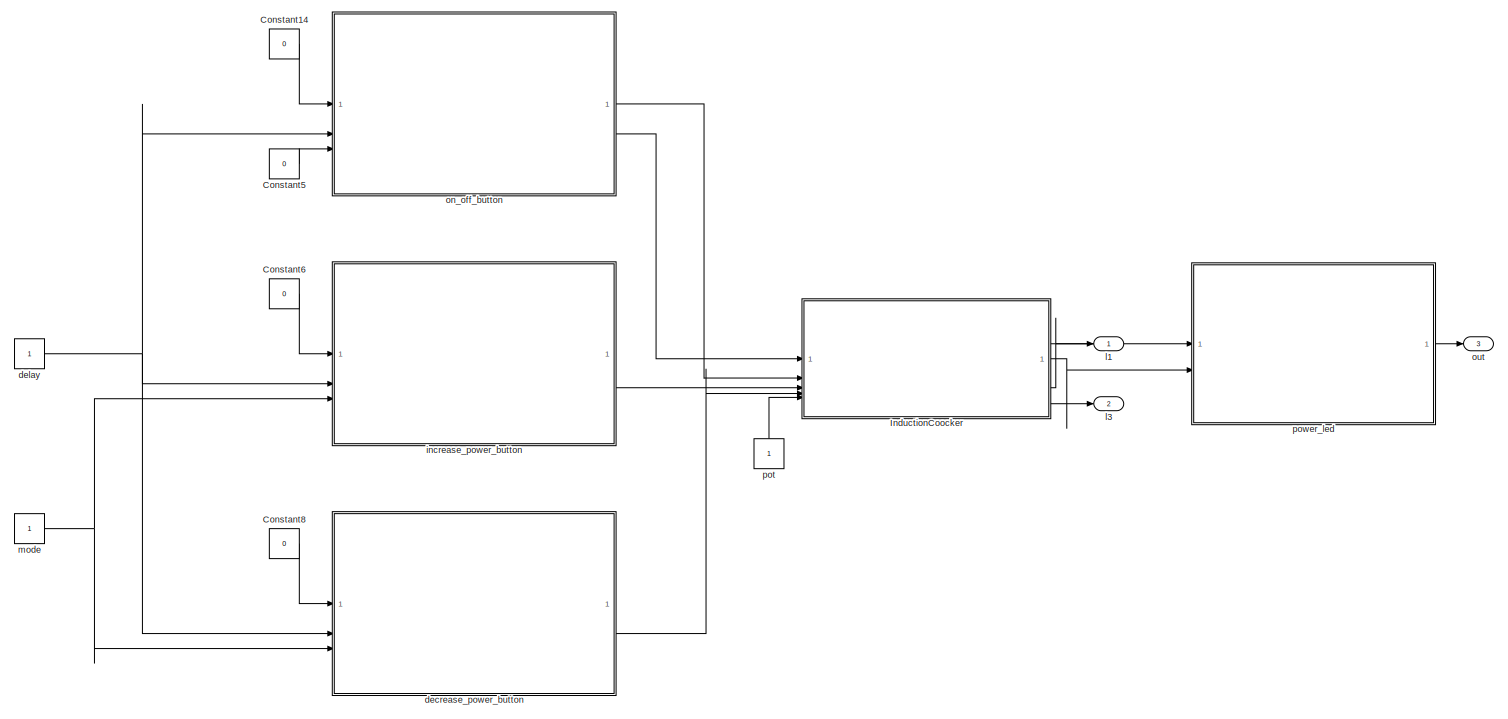
[diagram: root canvas - part 1/2, most of the canvas]
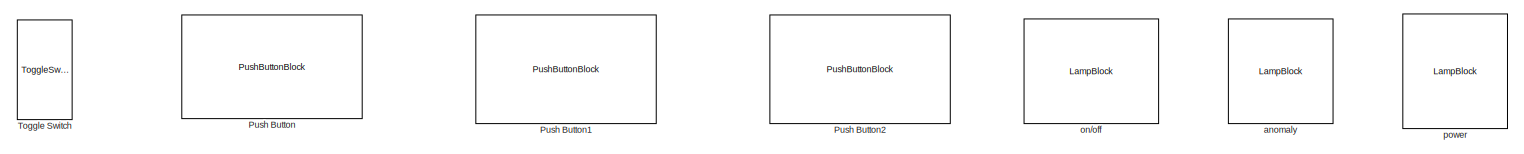
[diagram: root canvas - part 2/2, full width, bottom band]
MODEL slx_a8d4975da681
KIND model
CONFIG AbsTol = auto
CONFIG EnableMultiTasking = on
CONFIG FixedStep = 0.1
CONFIG MaxStep = auto
CONFIG MinStep = auto
CONFIG RelTol = 1e-3
CONFIG SampleTimeConstraint = Unconstrained
CONFIG SolverName = FixedStepDiscrete
CONFIG StartTime = 0.0
CONFIG StopTime = 2000
BLOCK [Constant] Constant14
  OutDataTypeStr = boolean
  Value = 0
BLOCK [Constant] Constant5
  OutDataTypeStr = boolean
  Value = 0
BLOCK [Constant] Constant6
  OutDataTypeStr = boolean
  Value = 0
BLOCK [Constant] Constant8
  OutDataTypeStr = boolean
  Value = 0
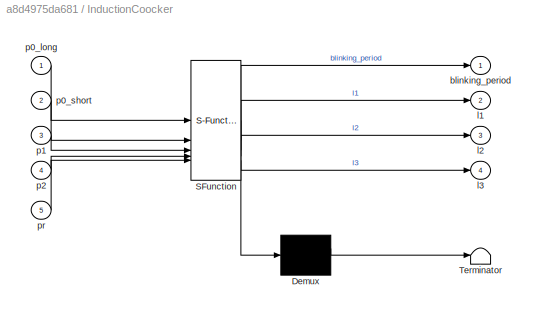
BLOCK [SubSystem] InductionCoocker
  ErrorFcn = Stateflow.Translate.translate
  PermitHierarchicalResolution = ExplicitOnly
  SFBlockType = Chart
  TreatAsAtomicUnit = on
BLOCK [Demux] InductionCoocker/ Demux 
  Outputs = 1
BLOCK [S-Function] InductionCoocker/ SFunction 
  EnableBusSupport = on
  FunctionName = sf_sfun
  PortCounts = [5 5]
  SFcnIsStateOwnerBlock = off
  SFunctionDeploymentMode = off
  Tag = Stateflow S-Function 2
BLOCK [Terminator] InductionCoocker/ Terminator 
BLOCK [Outport] InductionCoocker/blinking_period
BLOCK [Outport] InductionCoocker/l1
  Port = 2
BLOCK [Outport] InductionCoocker/l2
  Port = 3
BLOCK [Outport] InductionCoocker/l3
  Port = 4
BLOCK [Inport] InductionCoocker/p0_long
BLOCK [Inport] InductionCoocker/p0_short
  Port = 2
BLOCK [Inport] InductionCoocker/p1
  Port = 3
BLOCK [Inport] InductionCoocker/p2
  Port = 4
BLOCK [Inport] InductionCoocker/pr
  Port = 5
BLOCK [PushButtonBlock] Push Button
  ButtonText = on/off
  OffValue = 0.000000
BLOCK [PushButtonBlock] Push Button1
  ButtonText = increase power
  OffValue = 0.000000
BLOCK [PushButtonBlock] Push Button2
  ButtonText = decrease power
  OffValue = 0.000000
BLOCK [ToggleSwitchBlock] Toggle Switch
  LabelPosition = Hide
BLOCK [LampBlock] anomaly
  LabelPosition = Hide
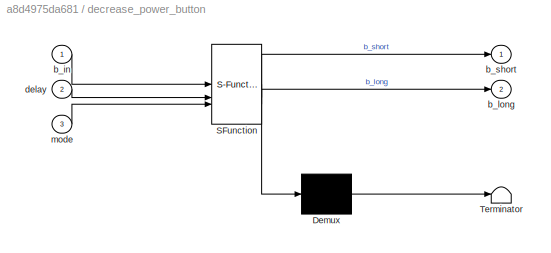
BLOCK [SubSystem] decrease_power_button 
  ErrorFcn = Stateflow.Translate.translate
  PermitHierarchicalResolution = ExplicitOnly
  SFBlockType = Chart
  TreatAsAtomicUnit = on
BLOCK [Demux] decrease_power_button / Demux 
  Outputs = 1
BLOCK [S-Function] decrease_power_button / SFunction 
  EnableBusSupport = on
  FunctionName = sf_sfun
  PortCounts = [3 3]
  SFcnIsStateOwnerBlock = off
  SFunctionDeploymentMode = off
  Tag = Stateflow S-Function 4
BLOCK [Terminator] decrease_power_button / Terminator 
BLOCK [Inport] decrease_power_button /b_in
BLOCK [Outport] decrease_power_button /b_long
  Port = 2
BLOCK [Outport] decrease_power_button /b_short
BLOCK [Inport] decrease_power_button /delay
  Port = 2
BLOCK [Inport] decrease_power_button /mode
  Port = 3
BLOCK [Constant] delay
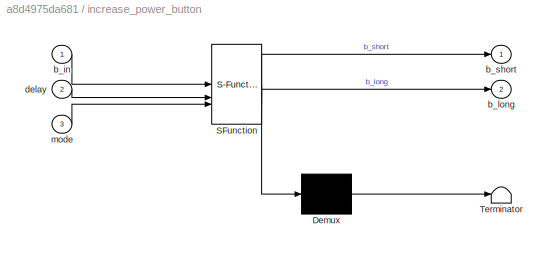
BLOCK [SubSystem] increase_power_button
  ErrorFcn = Stateflow.Translate.translate
  PermitHierarchicalResolution = ExplicitOnly
  SFBlockType = Chart
  TreatAsAtomicUnit = on
BLOCK [Demux] increase_power_button/ Demux 
  Outputs = 1
BLOCK [S-Function] increase_power_button/ SFunction 
  EnableBusSupport = on
  FunctionName = sf_sfun
  PortCounts = [3 3]
  SFcnIsStateOwnerBlock = off
  SFunctionDeploymentMode = off
  Tag = Stateflow S-Function 5
BLOCK [Terminator] increase_power_button/ Terminator 
BLOCK [Inport] increase_power_button/b_in
BLOCK [Outport] increase_power_button/b_long
  Port = 2
BLOCK [Outport] increase_power_button/b_short
BLOCK [Inport] increase_power_button/delay
  Port = 2
BLOCK [Inport] increase_power_button/mode
  Port = 3
BLOCK [Outport] l1
BLOCK [Outport] l3
  Port = 2
BLOCK [Constant] mode
  OutDataTypeStr = boolean
BLOCK [LampBlock] on//off
  LabelPosition = Hide
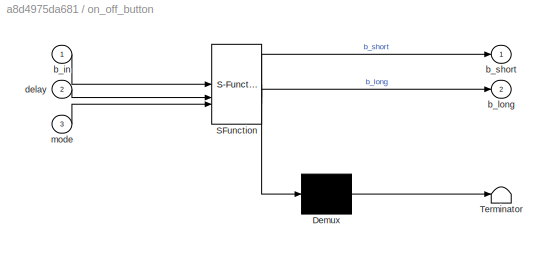
BLOCK [SubSystem] on_off_button
  ErrorFcn = Stateflow.Translate.translate
  PermitHierarchicalResolution = ExplicitOnly
  SFBlockType = Chart
  TreatAsAtomicUnit = on
BLOCK [Demux] on_off_button/ Demux 
  Outputs = 1
BLOCK [S-Function] on_off_button/ SFunction 
  EnableBusSupport = on
  FunctionName = sf_sfun
  PortCounts = [3 3]
  SFcnIsStateOwnerBlock = off
  SFunctionDeploymentMode = off
  Tag = Stateflow S-Function 3
BLOCK [Terminator] on_off_button/ Terminator 
BLOCK [Inport] on_off_button/b_in
BLOCK [Outport] on_off_button/b_long
  Port = 2
BLOCK [Outport] on_off_button/b_short
BLOCK [Inport] on_off_button/delay
  Port = 2
BLOCK [Inport] on_off_button/mode
  Port = 3
BLOCK [Outport] out
  Port = 3
BLOCK [Constant] pot
  NameLocation = right
  OutDataTypeStr = boolean
BLOCK [LampBlock] power
  LabelPosition = Hide
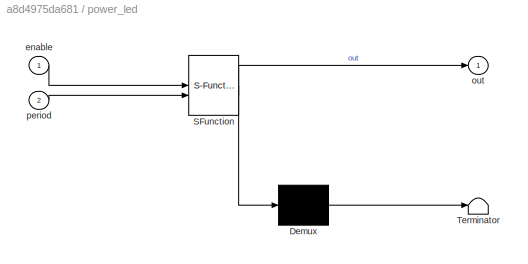
BLOCK [SubSystem] power_led
  ErrorFcn = Stateflow.Translate.translate
  PermitHierarchicalResolution = ExplicitOnly
  SFBlockType = Chart
  TreatAsAtomicUnit = on
BLOCK [Demux] power_led/ Demux 
  Outputs = 1
BLOCK [S-Function] power_led/ SFunction 
  EnableBusSupport = on
  FunctionName = sf_sfun
  PortCounts = [2 2]
  SFcnIsStateOwnerBlock = off
  SFunctionDeploymentMode = off
  Tag = Stateflow S-Function 1
BLOCK [Terminator] power_led/ Terminator 
BLOCK [Inport] power_led/enable
BLOCK [Outport] power_led/out
BLOCK [Inport] power_led/period
  Port = 2
LINE Constant14:1 -> on_off_button:1
LINE Constant5:1 -> on_off_button:3
LINE Constant6:1 -> increase_power_button:1
LINE Constant8:1 -> decrease_power_button :1
LINE InductionCoocker:1 -> power_led:2
LINE InductionCoocker:2 -> l1:1
LINE InductionCoocker:3 -> power_led:1
LINE InductionCoocker:4 -> l3:1
LINE decrease_power_button :2 -> InductionCoocker:4
NET delay:1 -> decrease_power_button :2, increase_power_button:2, on_off_button:2
LINE increase_power_button:2 -> InductionCoocker:3
NET mode:1 -> decrease_power_button :3, increase_power_button:3
LINE on_off_button:1 -> InductionCoocker:2
LINE on_off_button:2 -> InductionCoocker:1
LINE pot:1 -> InductionCoocker:5
LINE power_led:1 -> out:1
note: NET lines group one-source signal fan-out (src -> all destinations, sorted); 1:1 wires keep LINE
CHART on_off_button states=5 transitions=8
  STATE_LABEL 'wait_pressed\n\nen: b_short = RELEASED;\n b_long = RELEASED\n'
  STATE_LABEL 'pressed\n\nen: b_short = PRESSED'
  STATE_LABEL 'wait_longpressed\n\nen: b_short = RELEASED'
  STATE_LABEL 'wait_released\n\nen: b_long = RELEASED'
  STATE_LABEL 'longpressed\n\non after(delay, sec):\nb_long = PRESSED;'
CHART decrease_power_button  states=5 transitions=8
  STATE_LABEL 'wait_pressed\n\nen: b_short = RELEASED;\n b_long = RELEASED\n'
  STATE_LABEL 'pressed\n\nen: b_short = PRESSED'
  STATE_LABEL 'wait_longpressed\n\nen: b_short = RELEASED'
  STATE_LABEL 'wait_released\n\nen: b_long = RELEASED'
  STATE_LABEL 'longpressed\n\non after(delay, sec):\nb_long = PRESSED;'
CHART increase_power_button states=5 transitions=8
  STATE_LABEL 'wait_pressed\n\nen: b_short = RELEASED;\n b_long = RELEASED\n'
  STATE_LABEL 'pressed\n\nen: b_short = PRESSED'
  STATE_LABEL 'wait_longpressed\n\nen: b_short = RELEASED'
  STATE_LABEL 'wait_released\n\nen: b_long = RELEASED'
  STATE_LABEL 'longpressed\n\non after(delay, sec):\nb_long = PRESSED;'
CHART power_led states=4 transitions=6
  STATE_LABEL 'blink'
  STATE_LABEL 'blink_on\n\nen: out = ACTIVE'
  STATE_LABEL 'blink_off\n\nen: out = DISACTIVE'
  STATE_LABEL 'after(period, msec)'
  STATE_LABEL 'after(period, msec)'
  STATE_LABEL 'blink_on\n\nen: out = ACTIVE'
  STATE_LABEL 'blink_off\n\nen: out = DISACTIVE'
  STATE_LABEL 'off\n\nen: out = DISACTIVE;'
CHART InductionCoocker states=20 transitions=28
  STATE_LABEL 'off\n\nen: l1 = OFF; l2 = OFF, l3 = OFF'
  STATE_LABEL 'inactive\n\nen: l1 = ON; l2 = OFF; err_status = ~ERR'
  STATE_LABEL 'active'
  STATE_LABEL 'powers'
  STATE_LABEL 'waiting_inactive'
  STATE_LABEL 'power_500w'
  STATE_LABEL 'waiting_500w'
  STATE_LABEL 'working_500w\n\nen: l2 = ON;\n blinking_period = DELAY_500;'
  STATE_LABEL 'after(POWER_DELAY, sec)[pr == POT_IS_PRESENT]'
  STATE_LABEL 'power_300w'
  STATE_LABEL 'waiting_300w'
  STATE_LABEL 'working_300w\n\nen: l2 = ON;\n blinking_period = DELAY_300;'
  STATE_LABEL 'after(POWER_DELAY, sec)[pr == POT_IS_PRESENT]'
  STATE_LABEL 'power_1500w'
  STATE_LABEL 'waiting_1500w'
  STATE_LABEL 'working_1500w\n\nen: l2 = ON;\n blinking_period = DELAY_1500;'
  STATE_LABEL 'after(POWER_DELAY, sec)[pr == POT_IS_PRESENT]'
  STATE_LABEL 'power_1000w'
  STATE_LABEL 'waiting_1000w'
  STATE_LABEL 'working_1000w\n\nen: l2 = ON;\n blinking_period = DELAY_1000;'
  STATE_LABEL 'after(POWER_DELAY, sec)[pr == POT_IS_PRESENT]'
  STATE_LABEL '[p2 == PRESSED & pr == POT_IS_PRESENT]'
  STATE_LABEL '[p1 == PRESSED & pr == POT_IS_PRESENT]'
  STATE_LABEL '[p1 == PRESSED & pr == POT_IS_PRESENT]'
  STATE_LABEL '[p2 == PRESSED & pr == POT_IS_PRESENT]'
  STATE_LABEL '[p2 == PRESSED & pr == POT_IS_PRESENT]'
  STATE_LABEL '[p1 == PRESSED & pr == POT_IS_PRESENT]'
  STATE_LABEL '[p2 == PRESSED & pr == POT_IS_PRESENT]'
  STATE_LABEL '[p1 == PRESSED & pr == POT_IS_PRESENT]'
  STATE_LABEL 'anomaly_guard'
  STATE_LABEL 'guard'
  STATE_LABEL 'anomaly_detected\n\nen: l3 = ON\nexit: l3 = OFF'
  STATE_LABEL 'after(ANOMALY_DELAY, sec){err_status = ERR}'
  STATE_LABEL '[pr == POT_IS_PRESENT]'
  STATE_LABEL '[pr == ~POT_IS_PRESENT]'
  STATE_LABEL 'powers'
  STATE_LABEL 'waiting_inactive'
  STATE_LABEL 'power_500w'
  STATE_LABEL 'waiting_500w'
  STATE_LABEL 'working_500w\n\nen: l2 = ON;\n blinking_period = DELAY_500;'
CHART  states=0 transitions=0
CHART  states=0 transitions=0
CHART  states=0 transitions=0
CHART  states=0 transitions=0
CHART  states=0 transitions=0
